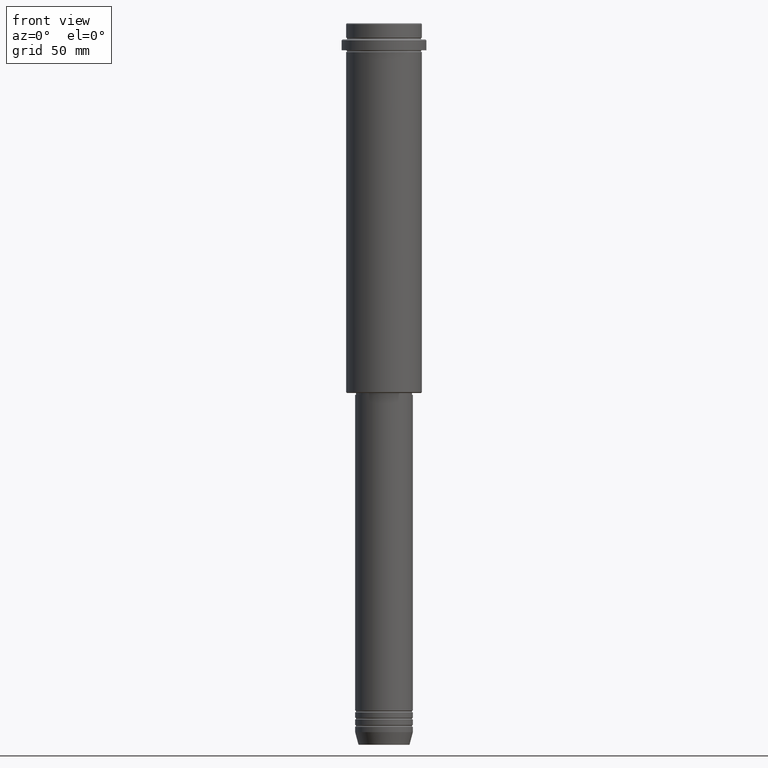
[diagram: clean part render]
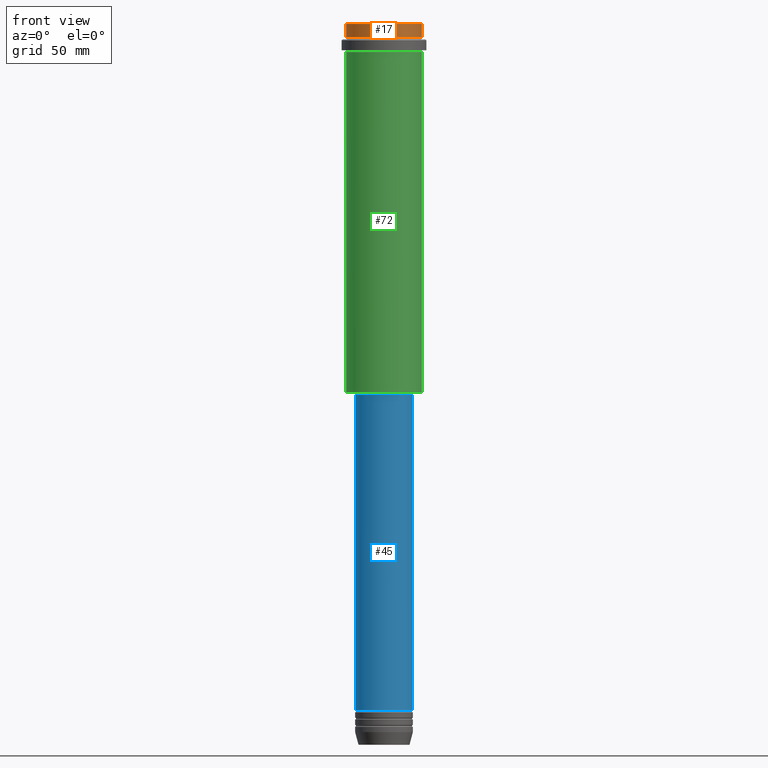
[diagram: same view with three faces highlighted in distinct colors, each labeled with its STEP entity id]
A machine part, front view with three faces highlighted in distinct colors.
Their STEP definitions:

[orange] entity #17 — the highlighted cylindrical surface (partial cylindrical patch) has radius 21 mm, axis along (-0, -0, 1).
#17 = ADVANCED_FACE ( 'NONE', ( #1046 ), #936, .T. ) ;
#28 = VERTEX_POINT ( 'NONE', #947 ) ;
#56 = VERTEX_POINT ( 'NONE', #70 ) ;
#70 = CARTESIAN_POINT ( 'NONE',  ( -20.99999999999999645, 2.571758278209441267E-15, -7.999999999999998224 ) ) ;
#73 = DIRECTION ( 'NONE',  ( 1.000000000000000000, 0.000000000000000000, 0.000000000000000000 ) ) ;
#118 = AXIS2_PLACEMENT_3D ( 'NONE', #619, #372, #273 ) ;
#148 = CARTESIAN_POINT ( 'NONE',  ( 0.000000000000000000, 0.000000000000000000, -7.999999999999998224 ) ) ;
#220 = CARTESIAN_POINT ( 'NONE',  ( 20.99999999999999645, 0.000000000000000000, -7.999999999999998224 ) ) ;
#235 = VECTOR ( 'NONE', #241, 1000.000000000000000 ) ;
#241 = DIRECTION ( 'NONE',  ( -0.000000000000000000, -0.000000000000000000, 1.000000000000000000 ) ) ;
#273 = DIRECTION ( 'NONE',  ( 1.000000000000000000, 0.000000000000000000, 0.000000000000000000 ) ) ;
#372 = DIRECTION ( 'NONE',  ( -0.000000000000000000, -0.000000000000000000, 1.000000000000000000 ) ) ;
#453 = CARTESIAN_POINT ( 'NONE',  ( 20.99999999999999645, 0.000000000000000000, -0.4999999999999795164 ) ) ;
#459 = CARTESIAN_POINT ( 'NONE',  ( 20.99999999999999645, 0.000000000000000000, 0.000000000000000000 ) ) ;
#548 = EDGE_LOOP ( 'NONE', ( #1288, #1157, #1089, #1094 ) ) ;
#555 = DIRECTION ( 'NONE',  ( -0.000000000000000000, -0.000000000000000000, 1.000000000000000000 ) ) ;
#557 = AXIS2_PLACEMENT_3D ( 'NONE', #148, #555, #992 ) ;
#619 = CARTESIAN_POINT ( 'NONE',  ( 0.000000000000000000, 0.000000000000000000, 0.000000000000000000 ) ) ;
#637 = DIRECTION ( 'NONE',  ( -0.000000000000000000, -0.000000000000000000, 1.000000000000000000 ) ) ;
#654 = EDGE_CURVE ( 'NONE', #689, #1107, #811, .T. ) ;
#689 = VERTEX_POINT ( 'NONE', #220 ) ;
#697 = EDGE_CURVE ( 'NONE', #56, #28, #1321, .T. ) ;
#780 = CIRCLE ( 'NONE', #838, 20.99999999999999645 ) ;
#811 = LINE ( 'NONE', #459, #1303 ) ;
#834 = EDGE_CURVE ( 'NONE', #1107, #28, #780, .T. ) ;
#838 = AXIS2_PLACEMENT_3D ( 'NONE', #1256, #1050, #73 ) ;
#936 = CYLINDRICAL_SURFACE ( 'NONE', #118, 20.99999999999999645 ) ;
#947 = CARTESIAN_POINT ( 'NONE',  ( -20.99999999999999645, 2.571758278209441267E-15, -0.4999999999999795164 ) ) ;
#992 = DIRECTION ( 'NONE',  ( 1.000000000000000000, 0.000000000000000000, 0.000000000000000000 ) ) ;
#1046 = FACE_OUTER_BOUND ( 'NONE', #548, .T. ) ;
#1050 = DIRECTION ( 'NONE',  ( 0.000000000000000000, 0.000000000000000000, -1.000000000000000000 ) ) ;
#1089 = ORIENTED_EDGE ( 'NONE', *, *, #654, .T. ) ;
#1094 = ORIENTED_EDGE ( 'NONE', *, *, #834, .T. ) ;
#1107 = VERTEX_POINT ( 'NONE', #453 ) ;
#1121 = EDGE_CURVE ( 'NONE', #56, #689, #1172, .T. ) ;
#1157 = ORIENTED_EDGE ( 'NONE', *, *, #1121, .T. ) ;
#1172 = CIRCLE ( 'NONE', #557, 20.99999999999999645 ) ;
#1223 = CARTESIAN_POINT ( 'NONE',  ( -20.99999999999999645, 2.571758278209441267E-15, 0.000000000000000000 ) ) ;
#1256 = CARTESIAN_POINT ( 'NONE',  ( 0.000000000000000000, 0.000000000000000000, -0.4999999999999795164 ) ) ;
#1288 = ORIENTED_EDGE ( 'NONE', *, *, #697, .F. ) ;
#1303 = VECTOR ( 'NONE', #637, 1000.000000000000000 ) ;
#1321 = LINE ( 'NONE', #1223, #235 ) ;

[blue] entity #45 — the highlighted cylindrical surface (edge-blend (fillet) strip) has radius 16 mm, axis along (-0, -0, 1).
#5 = AXIS2_PLACEMENT_3D ( 'NONE', #695, #178, #590 ) ;
#26 = AXIS2_PLACEMENT_3D ( 'NONE', #845, #602, #1038 ) ;
#45 = ADVANCED_FACE ( 'NONE', ( #1144 ), #832, .T. ) ;
#46 = ORIENTED_EDGE ( 'NONE', *, *, #1208, .F. ) ;
#140 = AXIS2_PLACEMENT_3D ( 'NONE', #1110, #569, #1141 ) ;
#178 = DIRECTION ( 'NONE',  ( -0.000000000000000000, -0.000000000000000000, 1.000000000000000000 ) ) ;
#284 = LINE ( 'NONE', #291, #1217 ) ;
#291 = CARTESIAN_POINT ( 'NONE',  ( -16.00000000000000000, 1.959434878635765131E-15, 0.000000000000000000 ) ) ;
#302 = CARTESIAN_POINT ( 'NONE',  ( -16.00000000000000000, 1.959434878635765131E-15, -380.9999999999998863 ) ) ;
#318 = CARTESIAN_POINT ( 'NONE',  ( 16.00000000000000000, 0.000000000000000000, -380.9999999999998863 ) ) ;
#368 = DIRECTION ( 'NONE',  ( -0.000000000000000000, -0.000000000000000000, 1.000000000000000000 ) ) ;
#404 = EDGE_CURVE ( 'NONE', #488, #1406, #1245, .T. ) ;
#422 = CIRCLE ( 'NONE', #140, 16.00000000000000355 ) ;
#488 = VERTEX_POINT ( 'NONE', #302 ) ;
#541 = CARTESIAN_POINT ( 'NONE',  ( -16.00000000000000355, 1.959434878635765526E-15, -205.9999999999999432 ) ) ;
#559 = EDGE_CURVE ( 'NONE', #1406, #1348, #1333, .T. ) ;
#569 = DIRECTION ( 'NONE',  ( -0.000000000000000000, -0.000000000000000000, 1.000000000000000000 ) ) ;
#590 = DIRECTION ( 'NONE',  ( 1.000000000000000000, 0.000000000000000000, 0.000000000000000000 ) ) ;
#602 = DIRECTION ( 'NONE',  ( -0.000000000000000000, -0.000000000000000000, 1.000000000000000000 ) ) ;
#658 = ORIENTED_EDGE ( 'NONE', *, *, #559, .T. ) ;
#673 = VERTEX_POINT ( 'NONE', #541 ) ;
#695 = CARTESIAN_POINT ( 'NONE',  ( 0.000000000000000000, 0.000000000000000000, -380.9999999999998863 ) ) ;
#703 = EDGE_CURVE ( 'NONE', #673, #1348, #422, .T. ) ;
#742 = CARTESIAN_POINT ( 'NONE',  ( 16.00000000000000355, 0.000000000000000000, -205.9999999999999432 ) ) ;
#812 = ORIENTED_EDGE ( 'NONE', *, *, #404, .T. ) ;
#832 = CYLINDRICAL_SURFACE ( 'NONE', #26, 16.00000000000000000 ) ;
#845 = CARTESIAN_POINT ( 'NONE',  ( 0.000000000000000000, 0.000000000000000000, 0.000000000000000000 ) ) ;
#848 = DIRECTION ( 'NONE',  ( -0.000000000000000000, -0.000000000000000000, 1.000000000000000000 ) ) ;
#1038 = DIRECTION ( 'NONE',  ( 1.000000000000000000, 0.000000000000000000, 0.000000000000000000 ) ) ;
#1047 = CARTESIAN_POINT ( 'NONE',  ( 16.00000000000000000, 0.000000000000000000, 0.000000000000000000 ) ) ;
#1110 = CARTESIAN_POINT ( 'NONE',  ( 0.000000000000000000, 0.000000000000000000, -205.9999999999999432 ) ) ;
#1118 = ORIENTED_EDGE ( 'NONE', *, *, #703, .F. ) ;
#1141 = DIRECTION ( 'NONE',  ( 1.000000000000000000, 0.000000000000000000, 0.000000000000000000 ) ) ;
#1144 = FACE_OUTER_BOUND ( 'NONE', #1182, .T. ) ;
#1182 = EDGE_LOOP ( 'NONE', ( #46, #812, #658, #1118 ) ) ;
#1208 = EDGE_CURVE ( 'NONE', #488, #673, #284, .T. ) ;
#1217 = VECTOR ( 'NONE', #368, 1000.000000000000000 ) ;
#1245 = CIRCLE ( 'NONE', #5, 16.00000000000000000 ) ;
#1324 = VECTOR ( 'NONE', #848, 1000.000000000000000 ) ;
#1333 = LINE ( 'NONE', #1047, #1324 ) ;
#1348 = VERTEX_POINT ( 'NONE', #742 ) ;
#1406 = VERTEX_POINT ( 'NONE', #318 ) ;

[green] entity #72 — the highlighted cylindrical surface (partial cylindrical patch) has radius 21 mm, axis along (-0, -0, 1).
#14 = DIRECTION ( 'NONE',  ( 1.000000000000000000, 0.000000000000000000, 0.000000000000000000 ) ) ;
#53 = EDGE_CURVE ( 'NONE', #1027, #1136, #839, .T. ) ;
#72 = ADVANCED_FACE ( 'NONE', ( #83 ), #1384, .T. ) ;
#83 = FACE_OUTER_BOUND ( 'NONE', #1339, .T. ) ;
#157 = EDGE_CURVE ( 'NONE', #1136, #348, #858, .T. ) ;
#168 = CIRCLE ( 'NONE', #710, 20.99999999999999645 ) ;
#187 = ORIENTED_EDGE ( 'NONE', *, *, #1143, .F. ) ;
#232 = CARTESIAN_POINT ( 'NONE',  ( -20.99999999999999645, 2.571758278209441267E-15, 0.000000000000000000 ) ) ;
#238 = VERTEX_POINT ( 'NONE', #1116 ) ;
#255 = ORIENTED_EDGE ( 'NONE', *, *, #649, .F. ) ;
#293 = CARTESIAN_POINT ( 'NONE',  ( 0.000000000000000000, 0.000000000000000000, -204.5000000000000284 ) ) ;
#339 = LINE ( 'NONE', #232, #491 ) ;
#348 = VERTEX_POINT ( 'NONE', #470 ) ;
#369 = CARTESIAN_POINT ( 'NONE',  ( 0.000000000000000000, 0.000000000000000000, -16.00000000000000355 ) ) ;
#400 = VECTOR ( 'NONE', #977, 1000.000000000000000 ) ;
#433 = DIRECTION ( 'NONE',  ( -0.000000000000000000, -0.000000000000000000, 1.000000000000000000 ) ) ;
#462 = CARTESIAN_POINT ( 'NONE',  ( -20.99999999999999645, 2.571758278209441267E-15, -204.5000000000000284 ) ) ;
#470 = CARTESIAN_POINT ( 'NONE',  ( 20.99999999999999645, 0.000000000000000000, -16.00000000000000355 ) ) ;
#491 = VECTOR ( 'NONE', #1102, 1000.000000000000000 ) ;
#540 = DIRECTION ( 'NONE',  ( -0.000000000000000000, -0.000000000000000000, 1.000000000000000000 ) ) ;
#649 = EDGE_CURVE ( 'NONE', #238, #348, #168, .T. ) ;
#710 = AXIS2_PLACEMENT_3D ( 'NONE', #369, #433, #14 ) ;
#798 = ORIENTED_EDGE ( 'NONE', *, *, #157, .T. ) ;
#839 = CIRCLE ( 'NONE', #928, 20.99999999999999645 ) ;
#858 = LINE ( 'NONE', #1283, #400 ) ;
#872 = CARTESIAN_POINT ( 'NONE',  ( 0.000000000000000000, 0.000000000000000000, 0.000000000000000000 ) ) ;
#928 = AXIS2_PLACEMENT_3D ( 'NONE', #293, #1364, #1258 ) ;
#967 = ORIENTED_EDGE ( 'NONE', *, *, #53, .T. ) ;
#977 = DIRECTION ( 'NONE',  ( -0.000000000000000000, -0.000000000000000000, 1.000000000000000000 ) ) ;
#1027 = VERTEX_POINT ( 'NONE', #462 ) ;
#1102 = DIRECTION ( 'NONE',  ( -0.000000000000000000, -0.000000000000000000, 1.000000000000000000 ) ) ;
#1116 = CARTESIAN_POINT ( 'NONE',  ( -20.99999999999999645, 2.571758278209441267E-15, -16.00000000000000355 ) ) ;
#1136 = VERTEX_POINT ( 'NONE', #1313 ) ;
#1143 = EDGE_CURVE ( 'NONE', #1027, #238, #339, .T. ) ;
#1258 = DIRECTION ( 'NONE',  ( -1.000000000000000000, 0.000000000000000000, 0.000000000000000000 ) ) ;
#1283 = CARTESIAN_POINT ( 'NONE',  ( 20.99999999999999645, 0.000000000000000000, 0.000000000000000000 ) ) ;
#1285 = AXIS2_PLACEMENT_3D ( 'NONE', #872, #540, #1300 ) ;
#1300 = DIRECTION ( 'NONE',  ( 1.000000000000000000, 0.000000000000000000, 0.000000000000000000 ) ) ;
#1313 = CARTESIAN_POINT ( 'NONE',  ( 20.99999999999999645, 0.000000000000000000, -204.5000000000000284 ) ) ;
#1339 = EDGE_LOOP ( 'NONE', ( #187, #967, #798, #255 ) ) ;
#1364 = DIRECTION ( 'NONE',  ( -0.000000000000000000, -0.000000000000000000, 1.000000000000000000 ) ) ;
#1384 = CYLINDRICAL_SURFACE ( 'NONE', #1285, 20.99999999999999645 ) ;